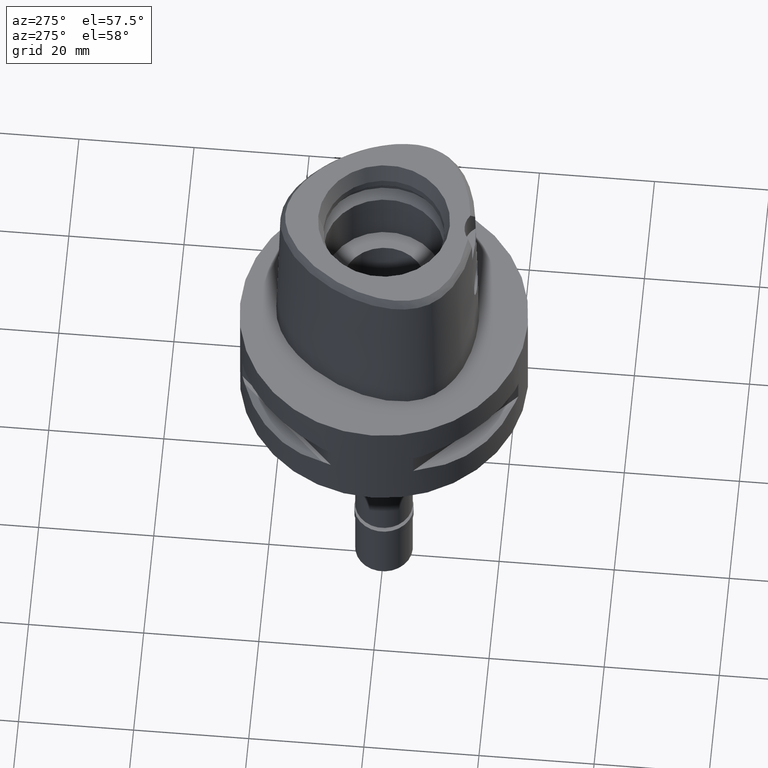
[diagram: clean part render]
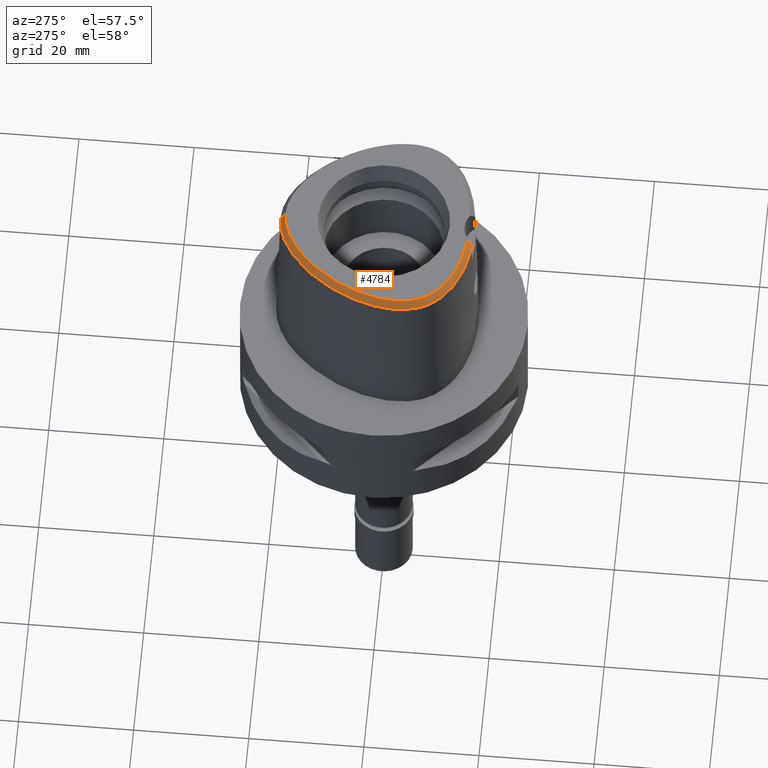
[diagram: same view with one face highlighted and labeled with its STEP entity id]
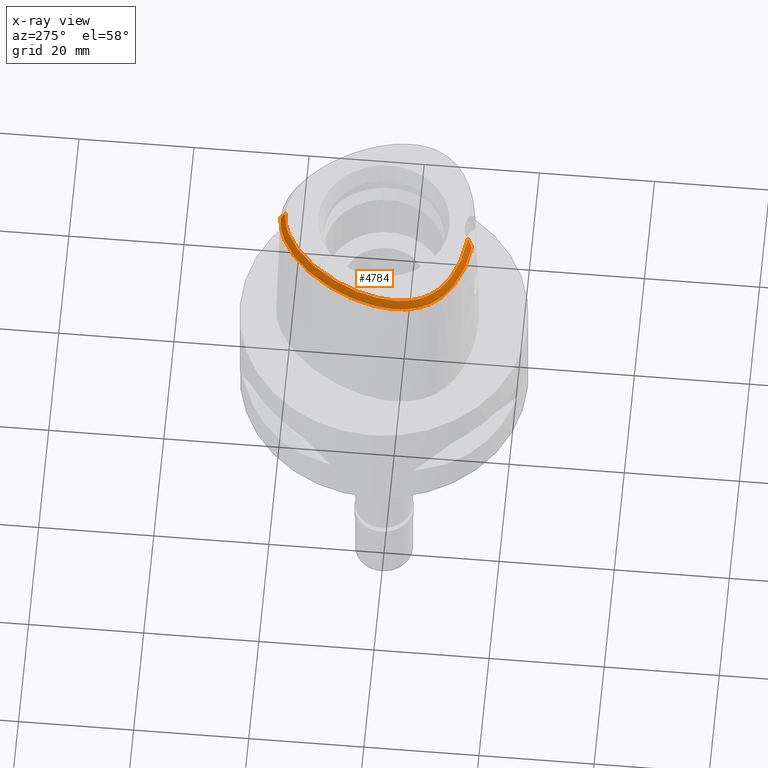
[diagram: x-ray of the same camera — body ghosted, the highlighted face saturated]
A machine part, auxiliary view. The second image highlights one B-rep face of the part: STEP entity #4784.
The next image is the same camera in x-ray: the body ghosted, the highlighted face saturated — about 0% of this face is hidden behind the body in this view.
In plain terms, the highlighted face is a freeform B-spline surface patch.
Its self-contained STEP definition (entity closure, byte-faithful):
#5 = CARTESIAN_POINT ( 'NONE',  ( -12.65209017756004073, -11.12734424253299359, 29.99999999999583267 ) ) ;
#18 = CARTESIAN_POINT ( 'NONE',  ( -13.94573670485999806, 5.345243573692999739, 30.12959633823999894 ) ) ;
#25 = CARTESIAN_POINT ( 'NONE',  ( -11.92713521269368648, 9.060544494662925885, 29.99999999999766587 ) ) ;
#40 = CARTESIAN_POINT ( 'NONE',  ( -8.074589743783999296, 14.28361554646000009, 28.97057008000999900 ) ) ;
#61 = CARTESIAN_POINT ( 'NONE',  ( -16.01307484165999639, -4.370701483408999444, 30.12959633808999982 ) ) ;
#79 = CARTESIAN_POINT ( 'NONE',  ( -3.114739903914999886, -14.66350907398999937, 30.12959636744000136 ) ) ;
#82 = CARTESIAN_POINT ( 'NONE',  ( -15.26562439559999973, -8.365619392163999635, 29.55008297680999974 ) ) ;
#106 = CARTESIAN_POINT ( 'NONE',  ( -1.942419394800000143, -15.09553525415000053, 29.55008332430999829 ) ) ;
#108 = CARTESIAN_POINT ( 'NONE',  ( -14.27574208757000029, -9.866629698438000418, 29.55008321985999942 ) ) ;
#133 = CARTESIAN_POINT ( 'NONE',  ( -7.959845227920999911, -14.26383136011999930, 28.97057178505999886 ) ) ;
#135 = CARTESIAN_POINT ( 'NONE',  ( -16.36479033415999851, -2.618504023929999924, 29.55008306780000282 ) ) ;
#154 = CARTESIAN_POINT ( 'NONE',  ( -3.229259467694999941, -15.63094578543999802, 28.39105701569999951 ) ) ;
#156 = CARTESIAN_POINT ( 'NONE',  ( -16.47168052945999861, -0.5229718306328999811, 28.97057041074999972 ) ) ;
#165 = CARTESIAN_POINT ( 'NONE',  ( -2.406542353497000075, -14.80491723099000012, 30.00000000000000000 ) ) ;
#184 = CARTESIAN_POINT ( 'NONE',  ( -13.36122377236999981, -10.84167275271000008, 29.55008303593000107 ) ) ;
#215 = CARTESIAN_POINT ( 'NONE',  ( -10.91764528034956427, 11.98972044748041554, 28.52071192347002437 ) ) ;
#216 = CARTESIAN_POINT ( 'NONE',  ( -1.285100973859999884, 17.97201317388999797, 28.39105611264999851 ) ) ;
#260 = CARTESIAN_POINT ( 'NONE',  ( -16.99625270563425516, -3.273868231552701236, 28.52071192347002437 ) ) ;
#261 = CARTESIAN_POINT ( 'NONE',  ( -0.6309644434551999748, 18.04003642411999664, 28.39105617650999847 ) ) ;
#291 = CARTESIAN_POINT ( 'NONE',  ( -0.5628212130827000559, 17.06764873572999974, 30.12959643503999985 ) ) ;
#297 = CARTESIAN_POINT ( 'NONE',  ( -1.772880577021841431, 16.97196055716213792, 29.99999999999094413 ) ) ;
#318 = CARTESIAN_POINT ( 'NONE',  ( -13.66338899149333130, -10.18351204678895527, 29.99999999999750955 ) ) ;
#336 = CARTESIAN_POINT ( 'NONE',  ( -4.904833995434000116, 16.80347941631999831, 28.39106146836000377 ) ) ;
#341 = CARTESIAN_POINT ( 'NONE',  ( -8.556928701965407669, 13.07433695898668091, 29.99999999999154099 ) ) ;
#360 = CARTESIAN_POINT ( 'NONE',  ( -14.24019958092999794, 5.482338197185000261, 29.55008335155999788 ) ) ;
#384 = CARTESIAN_POINT ( 'NONE',  ( -11.32025126657000058, 10.34312581809999898, 29.55008328122000094 ) ) ;
#389 = CARTESIAN_POINT ( 'NONE',  ( -0.5679008307149708834, 17.14013367087859052, 29.99999999999585043 ) ) ;
#401 = CARTESIAN_POINT ( 'NONE',  ( -6.548233405474999991, 15.84405808154000184, 28.39106020948999642 ) ) ;
#430 = CARTESIAN_POINT ( 'NONE',  ( -4.126628685512000239, 17.16482829560999690, 28.39105732866000409 ) ) ;
#457 = CARTESIAN_POINT ( 'NONE',  ( -16.89255495200000112, -5.280496358601000750, 28.39105647032999968 ) ) ;
#474 = CARTESIAN_POINT ( 'NONE',  ( -5.491022355989000125, -14.60359676294000053, 29.55008338023999670 ) ) ;
#476 = CARTESIAN_POINT ( 'NONE',  ( -15.64002846046999906, 1.723408399932999879, 29.55008405055000154 ) ) ;
#501 = CARTESIAN_POINT ( 'NONE',  ( -4.190255810106999768, -14.84819805870000131, 29.55008292004999859 ) ) ;
#503 = CARTESIAN_POINT ( 'NONE',  ( -16.57956598683999871, -6.778548152264999516, 28.39105629704000222 ) ) ;
#514 = CARTESIAN_POINT ( 'NONE',  ( -2.866104152261000429E-11, 17.98202997909999823, 28.52071728569000086 ) ) ;
#519 = CARTESIAN_POINT ( 'NONE',  ( -14.53466245700999870, 5.619432820677999985, 28.97057036487000303 ) ) ;
#526 = CARTESIAN_POINT ( 'NONE',  ( -12.00340931350999796, -11.53352852777999971, 30.12959635307999662 ) ) ;
#528 = CARTESIAN_POINT ( 'NONE',  ( -15.25601724362999967, -9.045189496301999199, 28.97056981138999987 ) ) ;
#549 = CARTESIAN_POINT ( 'NONE',  ( -2.398361591411000138, -15.05995138265000044, 29.55008332758999856 ) ) ;
#551 = CARTESIAN_POINT ( 'NONE',  ( -13.13959758869000005, -10.60410212008000030, 30.12959642917000025 ) ) ;
#607 = CARTESIAN_POINT ( 'NONE',  ( -13.75951393052806004, 7.944084103042049705, 28.52071192347002437 ) ) ;
#608 = CARTESIAN_POINT ( 'NONE',  ( -1.958315163187000385, 17.85476230088000094, 28.39105671475999770 ) ) ;
#631 = CARTESIAN_POINT ( 'NONE',  ( -5.902447850708579580, -15.16907854011377310, 28.52071192347002437 ) ) ;
#632 = CARTESIAN_POINT ( 'NONE',  ( -0.6082500333310000284, 17.71590719466000152, 28.97056959602000248 ) ) ;
#657 = CARTESIAN_POINT ( 'NONE',  ( -16.79165457291889396, -0.3537785057482575879, 28.52071192347002437 ) ) ;
#685 = CARTESIAN_POINT ( 'NONE',  ( 0.3144418932151000212, 17.40105662929000019, 29.55008308163000308 ) ) ;
#691 = CARTESIAN_POINT ( 'NONE',  ( -0.1909045559979947737, 17.15328888648566519, 29.99999999999450750 ) ) ;
#706 = CARTESIAN_POINT ( 'NONE',  ( -4.465944485255000984, 15.93327968713999887, 30.12959600879000277 ) ) ;
#711 = CARTESIAN_POINT ( 'NONE',  ( -14.76322153899672962, -8.744676018998882583, 29.99999999999871747 ) ) ;
#727 = CARTESIAN_POINT ( 'NONE',  ( -3.998865390286000299, 16.86612347293000269, 28.97057033318000308 ) ) ;
#736 = CARTESIAN_POINT ( 'NONE',  ( -14.55898035934284707, 4.112421202111359975, 29.99999999999530331 ) ) ;
#754 = CARTESIAN_POINT ( 'NONE',  ( -5.712784554873999276, 16.36530133411999799, 28.39106273012999893 ) ) ;
#761 = CARTESIAN_POINT ( 'NONE',  ( -3.077178008231584272, 16.60571267458179889, 29.99999999999777600 ) ) ;
#766 = DIRECTION ( 'NONE',  ( -2.026319334405034807E-11, -0.4887572537803078765, 0.8724198226067148010 ) ) ;
#767 = EDGE_CURVE ( 'NONE', #4296, #2712, #4087, .T. ) ;
#775 = CARTESIAN_POINT ( 'NONE',  ( -14.95224762181999978, 2.843674564794999693, 30.12959641708000191 ) ) ;
#795 = CARTESIAN_POINT ( 'NONE',  ( -6.367831702501000279, 15.57390162947999990, 28.97057217639000015 ) ) ;
#821 = CARTESIAN_POINT ( 'NONE',  ( -11.32497769324999837, -11.98903882213000038, 30.12959636847000056 ) ) ;
#823 = CARTESIAN_POINT ( 'NONE',  ( -16.12045889774000074, -8.078743157047998835, 28.39105675656000116 ) ) ;
#848 = CARTESIAN_POINT ( 'NONE',  ( -6.716804913506999597, -14.30316743880000097, 29.55008416906999713 ) ) ;
#850 = CARTESIAN_POINT ( 'NONE',  ( -14.91681948906999899, -9.560702459087000449, 28.97056965744999957 ) ) ;
#873 = CARTESIAN_POINT ( 'NONE',  ( -2.130587224720000172, -15.40746902204999991, 28.97057031599000254 ) ) ;
#875 = CARTESIAN_POINT ( 'NONE',  ( -16.93782078319000206, -1.562504871734999856, 28.39105584414999939 ) ) ;
#898 = CARTESIAN_POINT ( 'NONE',  ( -8.062924930879999508, -14.57187592383999863, 28.39105959786000000 ) ) ;
#900 = CARTESIAN_POINT ( 'NONE',  ( -15.22558893118999990, -7.692289917912000341, 30.12959638830999864 ) ) ;
#919 = CARTESIAN_POINT ( 'NONE',  ( -9.995050767363000688, -13.45062351085999985, 28.97056956792999927 ) ) ;
#920 = CARTESIAN_POINT ( 'NONE',  ( -3.168920966622999824, -15.55911077538999976, 28.52071192346999950 ) ) ;
#921 = CARTESIAN_POINT ( 'NONE',  ( -16.43796687410999979, -5.990021492770000400, 28.97056960787999813 ) ) ;
#931 = EDGE_LOOP ( 'NONE', ( #2355, #3932, #1007, #4147 ) ) ;
#945 = CARTESIAN_POINT ( 'NONE',  ( -13.61040256763000045, -10.13379572852000088, 30.12959642347999889 ) ) ;
#947 = CARTESIAN_POINT ( 'NONE',  ( -7.523733151594671931, 15.26501052509956757, 28.52071192347002437 ) ) ;
#949 = CARTESIAN_POINT ( 'NONE',  ( -0.04371518184950999586, 17.73561480912999855, 28.97056990514999697 ) ) ;
#972 = CARTESIAN_POINT ( 'NONE',  ( -8.702202515497370783, -14.36510996955825092, 28.52071192347002437 ) ) ;
#1001 = CARTESIAN_POINT ( 'NONE',  ( -3.377726810741000119, 17.45618784134000379, 28.39105538223000025 ) ) ;
#1007 = ORIENTED_EDGE ( 'NONE', *, *, #3691, .F. ) ;
#1060 = CARTESIAN_POINT ( 'NONE',  ( -4.150496093831097966, -14.59917355179901755, 29.99999999999370459 ) ) ;
#1079 = CARTESIAN_POINT ( 'NONE',  ( -14.82912533308000036, 5.756527444170000507, 28.39105737819000197 ) ) ;
#1087 = CARTESIAN_POINT ( 'NONE',  ( -10.60021164903144530, -12.49731984708819077, 29.99999999999607425 ) ) ;
#1101 = CARTESIAN_POINT ( 'NONE',  ( -3.871102095061000004, 16.56741865025999871, 29.55008333770999585 ) ) ;
#1108 = CARTESIAN_POINT ( 'NONE',  ( -14.01158736112931713, 5.375902008631943119, 29.99999999998934896 ) ) ;
#1124 = CARTESIAN_POINT ( 'NONE',  ( -7.210805929305999840, 14.97560362737999995, 28.97056933999999728 ) ) ;
#1129 = CARTESIAN_POINT ( 'NONE',  ( -9.420854217684912157, 12.20577134109514539, 29.99999999999095124 ) ) ;
#1139 = CARTESIAN_POINT ( 'NONE',  ( -2.866104152261000429E-11, 17.98202997909999823, 28.52071728569000086 ) ) ;
#1149 = B_SPLINE_CURVE_WITH_KNOTS ( 'NONE', 3,
 ( #4838, #4424, #1155, #1060, #2645, #2183, #4078, #2228, #1849, #1087, #1533, #1894, #5, #3740, #318, #1489, #4151, #711, #3287, #2952, #2924, #4471, #2575, #4495, #3763, #1802, #4127, #2550, #3017, #1510, #2160, #2201, #736, #1108, #3711, #3687, #25, #1875, #2994, #1129, #341, #1431, #4521, #4102, #3668, #2621, #4812, #761, #4057, #297, #2256, #389, #691, #4790 ),
 .UNSPECIFIED., .F., .F.,
 ( 4, 1, 1, 1, 1, 1, 1, 1, 1, 1, 1, 1, 1, 1, 1, 1, 1, 1, 1, 1, 1, 1, 1, 1, 1, 1, 1, 1, 1, 1, 1, 1, 1, 1, 1, 1, 1, 1, 1, 1, 1, 1, 1, 1, 1, 1, 1, 1, 1, 1, 1, 4 ),
 ( 0.0000000000000000000, 0.005566907331700066131, 0.02545556918509994659, 0.04534423103860008020, 0.06523289289190004059, 0.08512155474529992105, 0.1050102165987000236, 0.1248988784521999351, 0.1447875403055000065, 0.1646762021588999980, 0.1845648640122999895, 0.2044535258655999499, 0.2243421877191000835, 0.2442308495724999640, 0.2641195114257999244, 0.2840081732792000269, 0.3038968351325999073, 0.3237854969860000098, 0.3436741588394000013, 0.3635628206927999928, 0.3834514825461999843, 0.4033401443995000557, 0.4232288062529999673, 0.4431174681064000698, 0.4630061299597000302, 0.4828947918130999106, 0.5027834536666000442, 0.5226721155199000046, 0.5425607773732999961, 0.5624494392267000986, 0.5823381010799999480, 0.6022267629334999706, 0.6221154247869000731, 0.6420040866403000646, 0.6618927484936000250, 0.6817814103470000164, 0.7016700722005000390, 0.7215587340537999994, 0.7414473959071999909, 0.7613360577605999824, 0.7812247196139999739, 0.8011133814673999654, 0.8210020433207999568, 0.8408907051741000283, 0.8607793670275000197, 0.8806680288810000423, 0.9005566907343299787, 0.9204453525877199782, 0.9403340144411099777, 0.9602226762944999772, 0.9801113381478899766, 1.000000000000000000 ),
 .UNSPECIFIED. ) ;
#1150 = CARTESIAN_POINT ( 'NONE',  ( -12.40535243913000052, 9.383378939656999762, 28.97057053645000124 ) ) ;
#1155 = CARTESIAN_POINT ( 'NONE',  ( -3.123276563984559662, -14.73562494724701644, 29.99999999999225153 ) ) ;
#1170 = CARTESIAN_POINT ( 'NONE',  ( -10.47191590565999952, 11.40529037182999872, 29.55008293150999776 ) ) ;
#1191 = CARTESIAN_POINT ( 'NONE',  ( -16.61474247047999953, -1.596359891877999981, 28.97056938336999821 ) ) ;
#1214 = CARTESIAN_POINT ( 'NONE',  ( -11.03094805042999837, -13.28974746928999906, 28.39105631283999998 ) ) ;
#1216 = CARTESIAN_POINT ( 'NONE',  ( -15.93596141517000042, 0.5444695039012998894, 29.55008417384999930 ) ) ;
#1239 = CARTESIAN_POINT ( 'NONE',  ( -7.856765524961999425, -13.95578679640000175, 29.55008397225999772 ) ) ;
#1241 = CARTESIAN_POINT ( 'NONE',  ( -17.01383763495000068, -2.589127883696000332, 28.39105636344999795 ) ) ;
#1261 = CARTESIAN_POINT ( 'NONE',  ( -1.919068704645999768, -14.77171443021999941, 30.12959634608999693 ) ) ;
#1263 = CARTESIAN_POINT ( 'NONE',  ( -16.04026668377000320, -2.633192094048000254, 30.12959641998000038 ) ) ;
#1288 = CARTESIAN_POINT ( 'NONE',  ( -11.49727217991999950, -12.26445506279999975, 29.55008324662000163 ) ) ;
#1291 = CARTESIAN_POINT ( 'NONE',  ( -16.15111354763000051, -0.5754816439359000668, 29.55008337160999687 ) ) ;
#1301 = CARTESIAN_POINT ( 'NONE',  ( -3.168920966622999824, -15.55911077538999976, 28.52071192346999950 ) ) ;
#1316 = CARTESIAN_POINT ( 'NONE',  ( -13.01740317271999992, -11.57412723396999965, 28.97056963946999986 ) ) ;
#1318 = CARTESIAN_POINT ( 'NONE',  ( -16.01658395503302046, -8.155509241189420777, 28.52071192347002437 ) ) ;
#1334 = VERTEX_POINT ( 'NONE', #1719 ) ;
#1342 = CARTESIAN_POINT ( 'NONE',  ( -2.391982450938999971, 16.74597004408999723, 30.12959643281000055 ) ) ;
#1370 = CARTESIAN_POINT ( 'NONE',  ( -3.052969547505000047, 16.53720900895000057, 30.12959649901999981 ) ) ;
#1424 = CARTESIAN_POINT ( 'NONE',  ( -4.422474562382011420, 17.08283562090220187, 28.52071192347002437 ) ) ;
#1425 = CARTESIAN_POINT ( 'NONE',  ( -2.655702490102000102, 17.68431442410999921, 28.39105620421000253 ) ) ;
#1431 = CARTESIAN_POINT ( 'NONE',  ( -7.700642921101686689, 13.84415306341917606, 29.99999999999601030 ) ) ;
#1454 = CARTESIAN_POINT ( 'NONE',  ( -12.62421866132000048, 7.832152156583000568, 30.12959641708999925 ) ) ;
#1482 = CARTESIAN_POINT ( 'NONE',  ( -8.285101499694000893, 14.53100906164999984, 28.39105693295999799 ) ) ;
#1489 = CARTESIAN_POINT ( 'NONE',  ( -14.08052509618222814, -9.706873108418873741, 29.99999999999311839 ) ) ;
#1502 = CARTESIAN_POINT ( 'NONE',  ( -14.79292138892000175, 4.206575950095000849, 29.55008302555999933 ) ) ;
#1510 = CARTESIAN_POINT ( 'NONE',  ( -15.68979199461557883, 0.4896967076517452222, 29.99999999999470646 ) ) ;
#1527 = CARTESIAN_POINT ( 'NONE',  ( -4.758537492041000405, 16.51341283992000086, 28.97057298184000018 ) ) ;
#1533 = CARTESIAN_POINT ( 'NONE',  ( -11.36350786442216076, -12.05063008428623306, 29.99999999999131717 ) ) ;
#1551 = CARTESIAN_POINT ( 'NONE',  ( -9.179023548642000208, 13.72727136463999997, 28.39105896461999734 ) ) ;
#1572 = CARTESIAN_POINT ( 'NONE',  ( -12.38172372004999922, -12.06179034684999962, 28.97057024709999951 ) ) ;
#1574 = CARTESIAN_POINT ( 'NONE',  ( -16.25303875968999989, 0.6150193420862000160, 28.97057224630999883 ) ) ;
#1592 = CARTESIAN_POINT ( 'NONE',  ( -2.427258481691999759, -15.38333947528999879, 28.97057031002000116 ) ) ;
#1595 = CARTESIAN_POINT ( 'NONE',  ( -15.55430713233000084, -8.514752543644000582, 28.97056950741999870 ) ) ;
#1619 = CARTESIAN_POINT ( 'NONE',  ( -14.52719039944000023, -10.07240340995999972, 28.97057006354999942 ) ) ;
#1642 = CARTESIAN_POINT ( 'NONE',  ( -2.369464701129000428, -14.73656329002000120, 30.12959634515999952 ) ) ;
#1644 = CARTESIAN_POINT ( 'NONE',  ( -16.26537510448999768, 1.899438827950000075, 28.39105987782999918 ) ) ;
#1666 = CARTESIAN_POINT ( 'NONE',  ( -15.92755845774999912, -5.143632812602000115, 30.12959641137999967 ) ) ;
#1691 = CARTESIAN_POINT ( 'NONE',  ( -13.80447613974000021, -11.31681401796000053, 28.39105624946000006 ) ) ;
#1719 = CARTESIAN_POINT ( 'NONE',  ( -2.406542353497000075, -14.80491723099000012, 30.00000000000000000 ) ) ;
#1721 = CARTESIAN_POINT ( 'NONE',  ( -1.757944280955999972, 16.90085306591999981, 30.12959639167999981 ) ) ;
#1747 = CARTESIAN_POINT ( 'NONE',  ( -2.479889130659999719, 17.05875150409000085, 29.55008302327999914 ) ) ;
#1767 = CARTESIAN_POINT ( 'NONE',  ( -15.07117015428458906, -9.793013966485382582, 28.52071192347002437 ) ) ;
#1795 = CARTESIAN_POINT ( 'NONE',  ( -3.738627773282929834, -15.49270868799686163, 28.52071192347002793 ) ) ;
#1802 = CARTESIAN_POINT ( 'NONE',  ( -16.12543283908858882, -3.535877041748066940, 29.99999999999614175 ) ) ;
#1819 = CARTESIAN_POINT ( 'NONE',  ( 0.3384199597620999866, 18.05004332316999793, 28.39105641291000026 ) ) ;
#1844 = CARTESIAN_POINT ( 'NONE',  ( -6.187429999526999680, 15.30374517742000151, 29.55008414329000033 ) ) ;
#1849 = CARTESIAN_POINT ( 'NONE',  ( -9.750168658359342544, -12.92810664734511050, 29.99999999999818101 ) ) ;
#1870 = CARTESIAN_POINT ( 'NONE',  ( -3.743338799836000153, 16.26871382757999740, 30.12959634222999838 ) ) ;
#1875 = CARTESIAN_POINT ( 'NONE',  ( -11.11900396222228693, 10.19116357425606090, 29.99999999999625544 ) ) ;
#1888 = CARTESIAN_POINT ( 'NONE',  ( -13.45942261563000031, 8.334106923105000675, 28.39105639938999914 ) ) ;
#1894 = CARTESIAN_POINT ( 'NONE',  ( -12.04571048960259816, -11.59259605427333639, 30.00000000000062172 ) ) ;
#1909 = CARTESIAN_POINT ( 'NONE',  ( -5.385080890288000077, 15.80427443520000175, 29.55008484815000358 ) ) ;
#1934 = CARTESIAN_POINT ( 'NONE',  ( -16.24922395583999801, -5.189253994601999764, 29.55008309770000352 ) ) ;
#1951 = CARTESIAN_POINT ( 'NONE',  ( -6.301949014318000953E-11, 17.15328888647999861, 30.00000000000000000 ) ) ;
#1953 = CARTESIAN_POINT ( 'NONE',  ( -9.719340106754000175, -12.86232626772999943, 30.12959643858000192 ) ) ;
#1955 = CARTESIAN_POINT ( 'NONE',  ( -16.36690042325999883, -7.451045379393000267, 28.39105665549999813 ) ) ;
#1973 = CARTESIAN_POINT ( 'NONE',  ( -2.079934267755999766, -14.76011231754999997, 30.12959634439999945 ) ) ;
#1976 = CARTESIAN_POINT ( 'NONE',  ( -14.38686088526999995, -9.184625081749999254, 30.12959642729999743 ) ) ;
#1996 = CARTESIAN_POINT ( 'NONE',  ( -10.87580433363999965, -13.00432890193000013, 28.97056968324000081 ) ) ;
#1998 = CARTESIAN_POINT ( 'NONE',  ( -16.57011610420000380, 0.6855691802710000005, 28.39106031876000102 ) ) ;
#2022 = CARTESIAN_POINT ( 'NONE',  ( -4.139043497762000534, -14.52744323387999970, 30.12959646254000035 ) ) ;
#2024 = CARTESIAN_POINT ( 'NONE',  ( -16.70244543851000074, -3.544778753506000246, 28.97056988666999899 ) ) ;
#2045 = CARTESIAN_POINT ( 'NONE',  ( -2.105260746238000191, -15.08379066979999905, 29.55008333019999611 ) ) ;
#2048 = CARTESIAN_POINT ( 'NONE',  ( -14.32121711289000032, -10.80074170421000090, 28.39105632005999880 ) ) ;
#2078 = CARTESIAN_POINT ( 'NONE',  ( -16.85489160761079930, -5.354527567564733914, 28.52071192347002437 ) ) ;
#2126 = CARTESIAN_POINT ( 'NONE',  ( -1.240096342759999803, 17.65022933699999896, 28.97056955516000443 ) ) ;
#2151 = CARTESIAN_POINT ( 'NONE',  ( 0.3264309264886000039, 17.72554997622999906, 28.97056974727000167 ) ) ;
#2160 = CARTESIAN_POINT ( 'NONE',  ( -15.39727819201097603, 1.655076005306006737, 29.99999999999783284 ) ) ;
#2183 = CARTESIAN_POINT ( 'NONE',  ( -6.650243356160705055, -14.05992414833986182, 29.99999999999698730 ) ) ;
#2196 = CARTESIAN_POINT ( 'NONE',  ( -7.864077987874999565, 14.03622203126000123, 29.55008322706000001 ) ) ;
#2201 = CARTESIAN_POINT ( 'NONE',  ( -15.02099409651397544, 2.867135356161039983, 30.00000000000018474 ) ) ;
#2222 = CARTESIAN_POINT ( 'NONE',  ( -13.18102129753000007, 8.166788667597000284, 28.97056973862000007 ) ) ;
#2228 = CARTESIAN_POINT ( 'NONE',  ( -8.809985523415951647, -13.33678107331316198, 29.99999999999708322 ) ) ;
#2251 = CARTESIAN_POINT ( 'NONE',  ( -7.653566231964999744, 13.78882851606000060, 30.12959637410999747 ) ) ;
#2256 = CARTESIAN_POINT ( 'NONE',  ( -1.160151454488386635, 17.07862209883241533, 29.99999999999236522 ) ) ;
#2269 = EDGE_CURVE ( 'NONE', #1334, #2712, #1149, .T. ) ;
#2271 = CARTESIAN_POINT ( 'NONE',  ( -15.25965966301999899, 2.948583649865999856, 29.55008307790000188 ) ) ;
#2294 = CARTESIAN_POINT ( 'NONE',  ( -11.57946689420000119, 10.53886005931999925, 28.97057020392000126 ) ) ;
#2320 = CARTESIAN_POINT ( 'NONE',  ( -14.97694165887000040, -8.216486240683998687, 30.12959644619999722 ) ) ;
#2338 = CARTESIAN_POINT ( 'NONE',  ( -5.422567577860999855, -14.28607034266000042, 30.12959632998999737 ) ) ;
#2340 = CARTESIAN_POINT ( 'NONE',  ( -15.18179879096999940, -9.748741147756000203, 28.39105627252000019 ) ) ;
#2355 = ORIENTED_EDGE ( 'NONE', *, *, #2269, .T. ) ;
#2362 = CARTESIAN_POINT ( 'NONE',  ( -10.72066061684999916, -12.71891033457999853, 29.55008305365000254 ) ) ;
#2364 = CARTESIAN_POINT ( 'NONE',  ( -16.26659808036000143, -6.691295979736000987, 28.97056967312999731 ) ) ;
#2367 = VECTOR ( 'NONE', #766, 1000.000000000000000 ) ;
#2389 = CARTESIAN_POINT ( 'NONE',  ( -8.903507368365000119, -13.57099725437999993, 29.55008308004000028 ) ) ;
#2391 = CARTESIAN_POINT ( 'NONE',  ( -14.97860002066000007, -8.876016726420997927, 29.55008310965999740 ) ) ;
#2412 = CARTESIAN_POINT ( 'NONE',  ( -8.783047003372001171, -13.26931622281000145, 30.12959641646000009 ) ) ;
#2414 = CARTESIAN_POINT ( 'NONE',  ( -16.75600822510000043, -6.056398001099000616, 28.39105619504999822 ) ) ;
#2435 = CARTESIAN_POINT ( 'NONE',  ( -14.08427893112999918, -10.57842637897999971, 28.97056968785999942 ) ) ;
#2437 = CARTESIAN_POINT ( 'NONE',  ( -2.866104152261000429E-11, 17.98202997909999823, 28.52071728569000086 ) ) ;
#2466 = CARTESIAN_POINT ( 'NONE',  ( -14.26907056455933187, -10.79012254419024330, 28.52071192347002437 ) ) ;
#2543 = CARTESIAN_POINT ( 'NONE',  ( 0.4952333879816999129, 17.71681969803999834, 28.97056952742000036 ) ) ;
#2550 = CARTESIAN_POINT ( 'NONE',  ( -16.04083576397868782, -1.656498942829307541, 29.99999999999513633 ) ) ;
#2568 = CARTESIAN_POINT ( 'NONE',  ( -10.07795527044000039, 12.82344047729999836, 28.39105817663000408 ) ) ;
#2575 = CARTESIAN_POINT ( 'NONE',  ( -15.87300767660342338, -5.872112237378805055, 29.99999999999953459 ) ) ;
#2589 = CARTESIAN_POINT ( 'NONE',  ( -13.32025506786999891, 6.601617714724000052, 30.12959638842999865 ) ) ;
#2615 = CARTESIAN_POINT ( 'NONE',  ( -9.367926357396999748, 12.15601962390000068, 30.12959627393000162 ) ) ;
#2621 = CARTESIAN_POINT ( 'NONE',  ( -4.498660734199137146, 15.99814720005694113, 29.99999999999291944 ) ) ;
#2641 = CARTESIAN_POINT ( 'NONE',  ( -15.39557463693000017, 4.449127095533000897, 28.39105621238999788 ) ) ;
#2645 = CARTESIAN_POINT ( 'NONE',  ( -5.437876102061574457, -14.35707869331288578, 29.99999999999798561 ) ) ;
#2659 = CARTESIAN_POINT ( 'NONE',  ( -8.506820504766999136, 13.02174471178999937, 30.12959621046000080 ) ) ;
#2680 = CARTESIAN_POINT ( 'NONE',  ( -6.802539209026999600, -14.61647579543999953, 28.97057223535999881 ) ) ;
#2682 = CARTESIAN_POINT ( 'NONE',  ( -16.06050664017999807, -7.342922451857999633, 28.97056990249000208 ) ) ;
#2706 = CARTESIAN_POINT ( 'NONE',  ( -3.191086279768000189, -15.30846688161999936, 28.97057013294999805 ) ) ;
#2709 = CARTESIAN_POINT ( 'NONE',  ( -16.29166415777000054, -1.630214912021000107, 29.55008292259000058 ) ) ;
#2712 = VERTEX_POINT ( 'NONE', #1951 ) ;
#2727 = CARTESIAN_POINT ( 'NONE',  ( -2.456155371973999912, -15.70672756792000335, 28.39105729245000020 ) ) ;
#2729 = CARTESIAN_POINT ( 'NONE',  ( -16.11992552312000271, -5.923644984440999295, 29.55008302071999893 ) ) ;
#2754 = CARTESIAN_POINT ( 'NONE',  ( -15.95363017387000149, -6.604043807205999705, 29.55008304923000040 ) ) ;
#2783 = CARTESIAN_POINT ( 'NONE',  ( -3.152913091842000082, -14.98598797780999803, 29.55008325020000015 ) ) ;
#2785 = CARTESIAN_POINT ( 'NONE',  ( -15.80188417213000029, -5.857268476111999966, 30.12959643354999884 ) ) ;
#2788 = B_SPLINE_CURVE_WITH_KNOTS ( 'NONE', 3,
 ( #165, #4690, #3793, #1301 ),
 .UNSPECIFIED., .F., .F.,
 ( 4, 4 ),
 ( 0.0000000000000000000, 1.000000000000000000 ),
 .UNSPECIFIED. ) ;
#2813 = CARTESIAN_POINT ( 'NONE',  ( -13.22305455254999984, -11.82564179790000125, 28.39105624440999875 ) ) ;
#2841 = CARTESIAN_POINT ( 'NONE',  ( -0.04219342196854999200, 17.41074140779999979, 29.55008315063999902 ) ) ;
#2869 = CARTESIAN_POINT ( 'NONE',  ( -3.269474389662999858, 17.14986156388000182, 28.97056908783000040 ) ) ;
#2924 = CARTESIAN_POINT ( 'NONE',  ( -15.51623783590792804, -7.150856098907071967, 29.99999999999661426 ) ) ;
#2944 = CARTESIAN_POINT ( 'NONE',  ( -6.818903184742000079, 14.45742572773000134, 30.12959646726999807 ) ) ;
#2952 = CARTESIAN_POINT ( 'NONE',  ( -15.29229544369320415, -7.721097396978224836, 29.99999999998865263 ) ) ;
#2970 = CARTESIAN_POINT ( 'NONE',  ( -11.86693177641999952, 9.019902414325001061, 30.12959631664999804 ) ) ;
#2989 = CARTESIAN_POINT ( 'NONE',  ( -15.09424801291999962, 4.327851522813999985, 28.97056961898000083 ) ) ;
#2994 = CARTESIAN_POINT ( 'NONE',  ( -10.27907733182447991, 11.24278573582494190, 29.99999999998686917 ) ) ;
#3013 = CARTESIAN_POINT ( 'NONE',  ( -11.83868252182999825, 10.73459430054000130, 28.39105712662999892 ) ) ;
#3017 = CARTESIAN_POINT ( 'NONE',  ( -15.90223487644025901, -0.6162487013686206438, 29.99999999999362643 ) ) ;
#3038 = CARTESIAN_POINT ( 'NONE',  ( -8.730888186057999434, 13.25692026273999957, 29.55008379518000083 ) ) ;
#3056 = CARTESIAN_POINT ( 'NONE',  ( -11.84186115327000088, -12.81528754414999938, 28.39105700290999934 ) ) ;
#3058 = CARTESIAN_POINT ( 'NONE',  ( -16.68931398454999737, -2.603815953812999684, 28.97056971561999816 ) ) ;
#3080 = CARTESIAN_POINT ( 'NONE',  ( -15.84298986906000017, -8.663885695123999753, 28.39105603804000211 ) ) ;
#3107 = CARTESIAN_POINT ( 'NONE',  ( -14.77863871131000018, -10.27817712149000151, 28.39105690723999942 ) ) ;
#3125 = CARTESIAN_POINT ( 'NONE',  ( -10.13290609766999850, -13.74477213241999962, 28.39105613259999927 ) ) ;
#3127 = CARTESIAN_POINT ( 'NONE',  ( -16.66087645492000036, -4.420970976448000300, 28.97057036614999959 ) ) ;
#3146 = CARTESIAN_POINT ( 'NONE',  ( -4.241468122451000688, -15.16895288350999849, 28.97056937754999950 ) ) ;
#3149 = CARTESIAN_POINT ( 'NONE',  ( -16.79224751129000026, -0.4704620173297999752, 28.39105744988999902 ) ) ;
#3175 = CARTESIAN_POINT ( 'NONE',  ( -12.60610041306000007, -11.07109810611999912, 30.12959642957000028 ) ) ;
#3226 = CARTESIAN_POINT ( 'NONE',  ( -15.58740380354088195, -8.999391780896379700, 28.52071192347002437 ) ) ;
#3227 = FACE_OUTER_BOUND ( 'NONE', #931, .T. ) ;
#3279 = CARTESIAN_POINT ( 'NONE',  ( -0.6295828121030307978, 17.98203011041632848, 28.52071192347002437 ) ) ;
#3280 = CARTESIAN_POINT ( 'NONE',  ( -1.150087080558999997, 17.00666166321000006, 30.12959644018000205 ) ) ;
#3287 = CARTESIAN_POINT ( 'NONE',  ( -15.04149970408425929, -8.249836848500896380, 30.00000000000120437 ) ) ;
#3304 = CARTESIAN_POINT ( 'NONE',  ( -8.954955867350001597, 13.49209581368999977, 28.97057137990000086 ) ) ;
#3331 = CARTESIAN_POINT ( 'NONE',  ( -7.014854557023999959, 14.71651467755000020, 29.55008290363999990 ) ) ;
#3359 = CARTESIAN_POINT ( 'NONE',  ( -5.221229057994999145, 15.52376098574000096, 30.12959590715999880 ) ) ;
#3378 = CARTESIAN_POINT ( 'NONE',  ( -10.72030070819000080, 11.61460369083999922, 28.97056940378999812 ) ) ;
#3403 = CARTESIAN_POINT ( 'NONE',  ( -15.56707170421999997, 3.053492734937000019, 28.97056973872999919 ) ) ;
#3426 = CARTESIAN_POINT ( 'NONE',  ( -15.44771907400999922, -7.126676596787999252, 30.12959639645999843 ) ) ;
#3449 = CARTESIAN_POINT ( 'NONE',  ( -15.82216890888999927, -7.949925410668998715, 28.97056996713999766 ) ) ;
#3462 = B_SPLINE_SURFACE_WITH_KNOTS ( 'NONE', 3, 3, ( 
 ( #4340, #3629, #2543, #4390 ),
 ( #3605, #685, #2151, #1819 ),
 ( #3661, #2841, #949, #3999 ),
 ( #291, #3977, #632, #261 ),
 ( #3280, #3948, #2126, #216 ),
 ( #1721, #4708, #4783, #608 ),
 ( #1342, #1747, #4369, #1425 ),
 ( #1370, #4736, #2869, #1001 ),
 ( #1870, #1101, #727, #430 ),
 ( #706, #3705, #1527, #336 ),
 ( #3359, #1909, #4485, #754 ),
 ( #4464, #1844, #795, #401 ),
 ( #2944, #3331, #1124, #4832 ),
 ( #2251, #2196, #40, #1482 ),
 ( #2659, #3038, #3304, #1551 ),
 ( #2615, #4118, #4540, #2568 ),
 ( #3801, #1170, #3378, #4514 ),
 ( #3757, #384, #2294, #3013 ),
 ( #2970, #4146, #1150, #4165 ),
 ( #1454, #4806, #2222, #1888 ),
 ( #2589, #4093, #3733, #4446 ),
 ( #18, #360, #519, #1079 ),
 ( #4071, #1502, #2989, #2641 ),
 ( #775, #2271, #3403, #3775 ),
 ( #4562, #476, #3871, #1644 ),
 ( #4287, #1216, #1574, #1998 ),
 ( #3827, #1291, #156, #3149 ),
 ( #4236, #2709, #1191, #875 ),
 ( #1263, #135, #3058, #1241 ),
 ( #4633, #3897, #2024, #4614 ),
 ( #61, #3524, #3127, #3920 ),
 ( #1666, #1934, #4656, #457 ),
 ( #2785, #2729, #921, #2414 ),
 ( #3500, #2754, #2364, #503 ),
 ( #3426, #4260, #2682, #1955 ),
 ( #900, #4191, #3449, #823 ),
 ( #2320, #82, #1595, #3080 ),
 ( #3847, #2391, #528, #4589 ),
 ( #1976, #4216, #850, #2340 ),
 ( #3474, #108, #1619, #3107 ),
 ( #945, #4309, #2435, #2048 ),
 ( #551, #184, #3551, #1691 ),
 ( #3175, #4683, #1316, #2813 ),
 ( #526, #4284, #1572, #3869 ),
 ( #821, #1288, #4234, #3056 ),
 ( #4214, #2362, #1996, #1214 ),
 ( #1953, #3845, #919, #3125 ),
 ( #2412, #2389, #4587, #3522 ),
 ( #3918, #1239, #133, #898 ),
 ( #4654, #848, #2680, #3895 ),
 ( #2338, #474, #3548, #4258 ),
 ( #2022, #501, #3146, #3497 ),
 ( #79, #2783, #2706, #154 ),
 ( #1642, #549, #1592, #2727 ),
 ( #1973, #2045, #873, #3472 ),
 ( #1261, #106, #4631, #4189 ) ),
 .UNSPECIFIED., .F., .F., .F.,
 ( 4, 1, 1, 1, 1, 1, 1, 1, 1, 1, 1, 1, 1, 1, 1, 1, 1, 1, 1, 1, 1, 1, 1, 1, 1, 1, 1, 1, 1, 1, 1, 1, 1, 1, 1, 1, 1, 1, 1, 1, 1, 1, 1, 1, 1, 1, 1, 1, 1, 1, 1, 1, 1, 4 ),
 ( 4, 4 ),
 ( -0.01581534407490000141, 0.0000000000000000000, 0.01988866185210999907, 0.03977732370550000202, 0.05966598555888999456, 0.07955464741227999403, 0.09944330926566999351, 0.1193319711189999993, 0.1392206329725000080, 0.1591092948258999995, 0.1789979566792000154, 0.1988866185326000069, 0.2187752803859999984, 0.2386639422393999899, 0.2585526040928000091, 0.2784412659462000006, 0.2983299277995000165, 0.3182185896529999836, 0.3381072515063999750, 0.3579959133596999910, 0.3778845752130999824, 0.3977732370665000294, 0.4176618989199999965, 0.4375505607732999569, 0.4574392226267000039, 0.4773278844800999954, 0.4972165463333999558, 0.5171052081869000894, 0.5369938700402999698, 0.5568825318935999302, 0.5767711937470000327, 0.5966598556004999443, 0.6165485174538000157, 0.6364371793072000072, 0.6563258411605999987, 0.6762145030139999902, 0.6961031648674000927, 0.7159918267207999731, 0.7358804885742000756, 0.7557691504275000360, 0.7756578122808999165, 0.7955464741344000501, 0.8154351359877000105, 0.8353237978411000020, 0.8552124596944999935, 0.8751011215478000649, 0.8949897834012999764, 0.9148784452547000789, 0.9347671071080999594, 0.9546557689613999198, 0.9745444308149000534, 0.9944330926682999339, 1.000000000000000000, 1.006911813929000088 ),
 ( -0.06500680773222000663, 1.065042940829000084 ),
 .UNSPECIFIED. ) ;
#3472 = CARTESIAN_POINT ( 'NONE',  ( -2.155913703201999709, -15.73114737428999987, 28.39105730178999920 ) ) ;
#3474 = CARTESIAN_POINT ( 'NONE',  ( -14.02429377569999858, -9.660855986914000937, 30.12959637617999675 ) ) ;
#3497 = CARTESIAN_POINT ( 'NONE',  ( -4.292680434796000810, -15.48970770833000010, 28.39105583505000041 ) ) ;
#3500 = CARTESIAN_POINT ( 'NONE',  ( -15.64066226738999887, -6.516791634676000200, 30.12959642532999993 ) ) ;
#3522 = CARTESIAN_POINT ( 'NONE',  ( -9.144428098349999701, -14.17435931750000044, 28.39105640718999979 ) ) ;
#3524 = CARTESIAN_POINT ( 'NONE',  ( -16.33697564829000015, -4.395836229929000361, 29.55008335211999793 ) ) ;
#3548 = CARTESIAN_POINT ( 'NONE',  ( -5.559477134116999508, -14.92112318322000064, 28.97057043047999869 ) ) ;
#3551 = CARTESIAN_POINT ( 'NONE',  ( -13.58284995605000134, -11.07924338532999897, 28.97056964268999835 ) ) ;
#3605 = CARTESIAN_POINT ( 'NONE',  ( 0.3024528599415999830, 17.07656328234999776, 30.12959641599999827 ) ) ;
#3628 = CARTESIAN_POINT ( 'NONE',  ( -16.47905549557295757, -6.962316292879598301, 28.52071192347002437 ) ) ;
#3629 = CARTESIAN_POINT ( 'NONE',  ( 0.4773330406673999549, 17.39266729570000081, 29.55008298553999779 ) ) ;
#3661 = CARTESIAN_POINT ( 'NONE',  ( -0.04067166208759000201, 17.08586800647000103, 30.12959639612000018 ) ) ;
#3668 = CARTESIAN_POINT ( 'NONE',  ( -5.257871200567952208, 15.58649213537013622, 29.99999999999384670 ) ) ;
#3687 = CARTESIAN_POINT ( 'NONE',  ( -12.68647747556637206, 7.869569494476310823, 29.99999999999677058 ) ) ;
#3691 = EDGE_CURVE ( 'NONE', #3908, #4296, #4027, .T. ) ;
#3705 = CARTESIAN_POINT ( 'NONE',  ( -4.612240988647999806, 16.22334626353000075, 29.55008449531999659 ) ) ;
#3711 = CARTESIAN_POINT ( 'NONE',  ( -13.38439869301974916, 6.635703175840294676, 29.99999999999491251 ) ) ;
#3733 = CARTESIAN_POINT ( 'NONE',  ( -13.89391423584999963, 6.906456071124000395, 28.97056996626000114 ) ) ;
#3740 = CARTESIAN_POINT ( 'NONE',  ( -13.18915979441364961, -10.65722997876871325, 30.00000000000061107 ) ) ;
#3757 = CARTESIAN_POINT ( 'NONE',  ( -11.06103563893999997, 10.14739157688000049, 30.12959635850999618 ) ) ;
#3763 = CARTESIAN_POINT ( 'NONE',  ( -16.08550869467183730, -4.376322360225753272, 29.99999999999828404 ) ) ;
#3775 = CARTESIAN_POINT ( 'NONE',  ( -15.87448374541000007, 3.158401820007000094, 28.39105639955999649 ) ) ;
#3793 = CARTESIAN_POINT ( 'NONE',  ( -2.935844350011818538, -15.25651563096401198, 29.10537812855906736 ) ) ;
#3801 = CARTESIAN_POINT ( 'NONE',  ( -10.22353110314000091, 11.19597705282000000, 30.12959645923000096 ) ) ;
#3827 = CARTESIAN_POINT ( 'NONE',  ( -15.83054656579999886, -0.6279914572389999616, 30.12959633246999758 ) ) ;
#3845 = CARTESIAN_POINT ( 'NONE',  ( -9.857195437058999588, -13.15647488928999920, 29.55008300325000192 ) ) ;
#3847 = CARTESIAN_POINT ( 'NONE',  ( -14.70118279768999869, -8.706843956539000118, 30.12959640793000204 ) ) ;
#3869 = CARTESIAN_POINT ( 'NONE',  ( -12.57088092332999807, -12.32592125639000002, 28.39105719411999829 ) ) ;
#3871 = CARTESIAN_POINT ( 'NONE',  ( -15.95270178247999660, 1.811423613941000266, 28.97057196419000036 ) ) ;
#3895 = CARTESIAN_POINT ( 'NONE',  ( -6.888273504546999604, -14.92978415209000076, 28.39106030165000050 ) ) ;
#3897 = CARTESIAN_POINT ( 'NONE',  ( -16.37761867673999916, -3.539767573148000057, 29.55008314255999835 ) ) ;
#3908 = VERTEX_POINT ( 'NONE', #920 ) ;
#3918 = CARTESIAN_POINT ( 'NONE',  ( -7.753685822002999828, -13.64774223268000064, 30.12959615946000014 ) ) ;
#3920 = CARTESIAN_POINT ( 'NONE',  ( -16.98477726155999790, -4.446105722967000240, 28.39105738018000125 ) ) ;
#3932 = ORIENTED_EDGE ( 'NONE', *, *, #767, .F. ) ;
#3948 = CARTESIAN_POINT ( 'NONE',  ( -1.195091711659000078, 17.32844550010999995, 29.55008299766999968 ) ) ;
#3977 = CARTESIAN_POINT ( 'NONE',  ( -0.5855356232069000022, 17.39177796519000196, 29.55008301553000294 ) ) ;
#3999 = CARTESIAN_POINT ( 'NONE',  ( -0.04523694173046000078, 18.06048821046000086, 28.39105665966999936 ) ) ;
#4027 = B_SPLINE_CURVE_WITH_KNOTS ( 'NONE', 3,
 ( #4707, #1795, #631, #972, #4760, #4685, #2466, #1767, #3226, #1318, #3628, #2078, #260, #657, #4734, #607, #215, #947, #1424, #4389, #3279, #2437 ),
 .UNSPECIFIED., .F., .F.,
 ( 4, 1, 1, 1, 1, 1, 1, 1, 1, 1, 1, 1, 1, 1, 1, 1, 1, 1, 1, 4 ),
 ( 0.0000000000000000000, 0.03108635432774930346, 0.1191694130250633143, 0.1632109423736145815, 0.2072524717223772073, 0.2512940010710342231, 0.2733147657453627866, 0.2953355304195854902, 0.3173562950940196914, 0.3393770597682425061, 0.3834185891170052707, 0.4274601184655565378, 0.4715016478142135536, 0.5595847065115274743, 0.6476677652088415060, 0.7357508239061554267, 0.8238338826033637652, 0.9119169413007305325, 0.9559584706493770012, 1.000000000000000000 ),
 .UNSPECIFIED. ) ;
#4057 = CARTESIAN_POINT ( 'NONE',  ( -2.411640998825677507, 16.81591728051166967, 29.99999999999751310 ) ) ;
#4071 = CARTESIAN_POINT ( 'NONE',  ( -14.49159476490999943, 4.085300377375999936, 30.12959643215000227 ) ) ;
#4078 = CARTESIAN_POINT ( 'NONE',  ( -7.776737509123879732, -13.71663015822035803, 29.99999999999701572 ) ) ;
#4087 = LINE ( 'NONE', #1139, #2367 ) ;
#4093 = CARTESIAN_POINT ( 'NONE',  ( -13.60708465186000105, 6.754036892923998892, 29.55008317733999945 ) ) ;
#4102 = CARTESIAN_POINT ( 'NONE',  ( -6.047371482395962339, 15.09400374235160136, 29.99999999999264233 ) ) ;
#4118 = CARTESIAN_POINT ( 'NONE',  ( -9.604602661743999903, 12.37849324169999932, 29.55008357483000125 ) ) ;
#4127 = CARTESIAN_POINT ( 'NONE',  ( -16.11283982316964369, -2.629907404753709432, 29.99999999999284839 ) ) ;
#4146 = CARTESIAN_POINT ( 'NONE',  ( -12.13614210778000135, 9.201640676990999523, 29.55008342654999964 ) ) ;
#4147 = ORIENTED_EDGE ( 'NONE', *, *, #4244, .F. ) ;
#4151 = CARTESIAN_POINT ( 'NONE',  ( -14.44611813752787199, -9.226676124713531379, 29.99999999998912159 ) ) ;
#4165 = CARTESIAN_POINT ( 'NONE',  ( -12.67456277047999968, 9.565117202323000001, 28.39105764634999929 ) ) ;
#4189 = CARTESIAN_POINT ( 'NONE',  ( -1.989120775108000005, -15.74317690200999920, 28.39105728075000101 ) ) ;
#4191 = CARTESIAN_POINT ( 'NONE',  ( -15.52387892003999781, -7.821107664290999573, 29.55008317772999860 ) ) ;
#4214 = CARTESIAN_POINT ( 'NONE',  ( -10.56551690006000044, -12.43349176722000138, 30.12959642406000071 ) ) ;
#4216 = CARTESIAN_POINT ( 'NONE',  ( -14.65184018717000036, -9.372663770418000695, 29.55008304237000161 ) ) ;
#4234 = CARTESIAN_POINT ( 'NONE',  ( -11.66956666659999975, -12.53987130347000090, 28.97057012475999827 ) ) ;
#4236 = CARTESIAN_POINT ( 'NONE',  ( -15.96858584507000067, -1.664069932164999877, 30.12959646181000295 ) ) ;
#4244 = EDGE_CURVE ( 'NONE', #1334, #3908, #2788, .T. ) ;
#4258 = CARTESIAN_POINT ( 'NONE',  ( -5.627931912244999779, -15.23864960350000075, 28.39105748072000068 ) ) ;
#4260 = CARTESIAN_POINT ( 'NONE',  ( -15.75411285710000264, -7.234799524322999886, 29.55008314947000159 ) ) ;
#4284 = CARTESIAN_POINT ( 'NONE',  ( -12.19256651678000125, -11.79765943730999922, 29.55008330008999806 ) ) ;
#4287 = CARTESIAN_POINT ( 'NONE',  ( -15.61888407066000006, 0.4739196657163999848, 30.12959610138999977 ) ) ;
#4296 = VERTEX_POINT ( 'NONE', #514 ) ;
#4309 = CARTESIAN_POINT ( 'NONE',  ( -13.84734074938000070, -10.35611105375000029, 29.55008305567000093 ) ) ;
#4340 = CARTESIAN_POINT ( 'NONE',  ( 0.4594326933530000212, 17.06851489335999972, 30.12959644367000323 ) ) ;
#4369 = CARTESIAN_POINT ( 'NONE',  ( -2.567795810380999910, 17.37153296410000181, 28.97056961373999684 ) ) ;
#4389 = CARTESIAN_POINT ( 'NONE',  ( -1.893775706187208918, 17.84807082154081215, 28.52071192347002437 ) ) ;
#4390 = CARTESIAN_POINT ( 'NONE',  ( 0.5131337352960999576, 18.04097210036999854, 28.39105606929000203 ) ) ;
#4424 = CARTESIAN_POINT ( 'NONE',  ( -2.535517866336036263, -14.79323888262000430, 29.99999999999958789 ) ) ;
#4446 = CARTESIAN_POINT ( 'NONE',  ( -14.18074381983999999, 7.058875249324000123, 28.39105675517000194 ) ) ;
#4464 = CARTESIAN_POINT ( 'NONE',  ( -6.007028296554000057, 15.03358872534999868, 30.12959611019000050 ) ) ;
#4471 = CARTESIAN_POINT ( 'NONE',  ( -15.71065119878942085, -6.536303815290049002, 29.99999999999362288 ) ) ;
#4485 = CARTESIAN_POINT ( 'NONE',  ( -5.548932722581000121, 16.08478788466000253, 28.97057378913999770 ) ) ;
#4495 = CARTESIAN_POINT ( 'NONE',  ( -15.99949242929515947, -5.153835065648513236, 30.00000000000242650 ) ) ;
#4514 = CARTESIAN_POINT ( 'NONE',  ( -10.96868551070999942, 11.82391700984999972, 28.39105587605999759 ) ) ;
#4521 = CARTESIAN_POINT ( 'NONE',  ( -6.862723739080895058, 14.51536572208679488, 29.99999999999617017 ) ) ;
#4540 = CARTESIAN_POINT ( 'NONE',  ( -9.841278966090998281, 12.60096685949999973, 28.97057087573000089 ) ) ;
#4562 = CARTESIAN_POINT ( 'NONE',  ( -15.32735513845999975, 1.635393185925000159, 30.12959613690999916 ) ) ;
#4587 = CARTESIAN_POINT ( 'NONE',  ( -9.023967733358000842, -13.87267828594000108, 28.97056974361000314 ) ) ;
#4589 = CARTESIAN_POINT ( 'NONE',  ( -15.53343446660000104, -9.214362266182998695, 28.39105651312000234 ) ) ;
#4614 = CARTESIAN_POINT ( 'NONE',  ( -17.02727220028999966, -3.549789933863999991, 28.39105663076999875 ) ) ;
#4631 = CARTESIAN_POINT ( 'NONE',  ( -1.965770084953999852, -15.41935607807999986, 28.97057030253000320 ) ) ;
#4633 = CARTESIAN_POINT ( 'NONE',  ( -16.05279191497000113, -3.534756392790000312, 30.12959639845000126 ) ) ;
#4654 = CARTESIAN_POINT ( 'NONE',  ( -6.631070617987000482, -13.98985908215999885, 30.12959610276999811 ) ) ;
#4656 = CARTESIAN_POINT ( 'NONE',  ( -16.57088945391999957, -5.234875176601000213, 28.97056978400999938 ) ) ;
#4683 = CARTESIAN_POINT ( 'NONE',  ( -12.81175179288999999, -11.32261267004999894, 29.55008303452000362 ) ) ;
#4685 = CARTESIAN_POINT ( 'NONE',  ( -13.06460239553248392, -11.91950051571783398, 28.52071192347002437 ) ) ;
#4690 = CARTESIAN_POINT ( 'NONE',  ( -2.674237912690903496, -15.00654602987147790, 29.59847415406906990 ) ) ;
#4707 = CARTESIAN_POINT ( 'NONE',  ( -3.168920966622999824, -15.55911077538999976, 28.52071192346999950 ) ) ;
#4708 = CARTESIAN_POINT ( 'NONE',  ( -1.824734575033000183, 17.21882281091000166, 29.55008316604000029 ) ) ;
#4734 = CARTESIAN_POINT ( 'NONE',  ( -15.84228689413099822, 3.460033471612428357, 28.52071192347002437 ) ) ;
#4736 = CARTESIAN_POINT ( 'NONE',  ( -3.161221968583999953, 16.84353528640999897, 29.55008279342000321 ) ) ;
#4760 = CARTESIAN_POINT ( 'NONE',  ( -11.33338053122485967, -13.08225253589444037, 28.52071192347002437 ) ) ;
#4783 = CARTESIAN_POINT ( 'NONE',  ( -1.891524869109999729, 17.53679255588999908, 28.97056994040000077 ) ) ;
#4784 = ADVANCED_FACE ( 'NONE', ( #3227 ), #3462, .F. ) ;
#4790 = CARTESIAN_POINT ( 'NONE',  ( -6.301949014318000953E-11, 17.15328888647999861, 30.00000000000000000 ) ) ;
#4806 = CARTESIAN_POINT ( 'NONE',  ( -12.90261997942999983, 7.999470412090000870, 29.55008307785000099 ) ) ;
#4812 = CARTESIAN_POINT ( 'NONE',  ( -3.771910472265352254, 16.33551310926439015, 29.99999999998979305 ) ) ;
#4832 = CARTESIAN_POINT ( 'NONE',  ( -7.406757301588998921, 15.23469257719999881, 28.39105577636000177 ) ) ;
#4838 = CARTESIAN_POINT ( 'NONE',  ( -2.406542353497000075, -14.80491723099000012, 30.00000000000000000 ) ) ;